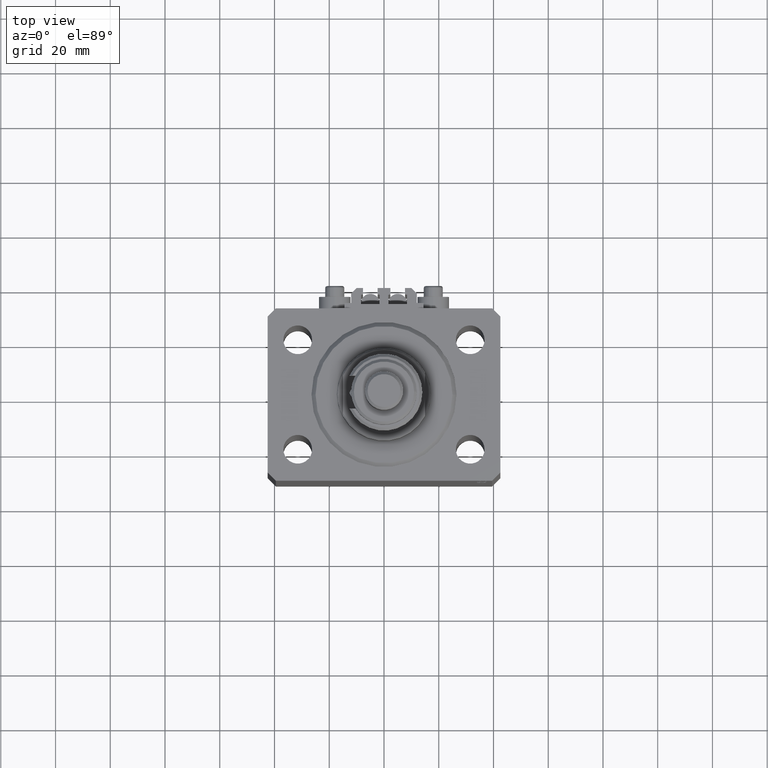
[diagram: clean part render]
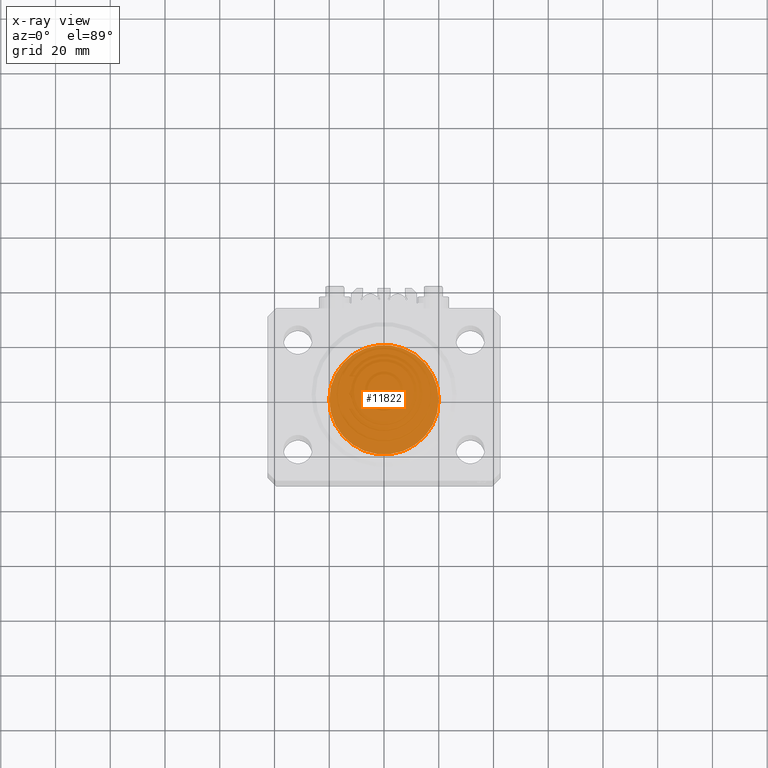
[diagram: x-ray — body ghosted, one internal face saturated and labeled with its STEP entity id]
A machine part, top view, then the same camera in x-ray: the body is ghosted and one INTERNAL B-rep face — a face not visible from any outside direction — is saturated and labeled: STEP entity #11822.
In plain terms, the highlighted planar face has unit normal (0, 0, 1).
Its self-contained STEP definition (entity closure, byte-faithful):
#2879 = ORIENTED_EDGE ( 'NONE', *, *, #25525, .F. ) ;
#3038 = AXIS2_PLACEMENT_3D ( 'NONE', #18969, #15360, #30836 ) ;
#8538 = CARTESIAN_POINT ( 'NONE',  ( 0.000000000000000000, 0.000000000000000000, 0.000000000000000000 ) ) ;
#9011 = VERTEX_POINT ( 'NONE', #24372 ) ;
#11822 = ADVANCED_FACE ( 'NONE', ( #36820 ), #29346, .F. ) ;
#15360 = DIRECTION ( 'NONE',  ( 0.000000000000000000, 0.000000000000000000, 1.000000000000000000 ) ) ;
#18969 = CARTESIAN_POINT ( 'NONE',  ( 0.000000000000000000, 0.000000000000000000, 0.000000000000000000 ) ) ;
#23237 = DIRECTION ( 'NONE',  ( 1.000000000000000000, 0.000000000000000000, 0.000000000000000000 ) ) ;
#23563 = VERTEX_POINT ( 'NONE', #48374 ) ;
#24372 = CARTESIAN_POINT ( 'NONE',  ( -20.00000000000000000, 0.000000000000000000, 0.000000000000000000 ) ) ;
#25525 = EDGE_CURVE ( 'NONE', #23563, #9011, #42785, .T. ) ;
#27522 = AXIS2_PLACEMENT_3D ( 'NONE', #40935, #40679, #41450 ) ;
#29346 = PLANE ( 'NONE',  #27522 ) ;
#30223 = CIRCLE ( 'NONE', #3038, 20.00000000000000000 ) ;
#30836 = DIRECTION ( 'NONE',  ( 1.000000000000000000, 0.000000000000000000, 0.000000000000000000 ) ) ;
#36820 = FACE_OUTER_BOUND ( 'NONE', #42961, .T. ) ;
#40679 = DIRECTION ( 'NONE',  ( 0.000000000000000000, 0.000000000000000000, 1.000000000000000000 ) ) ;
#40935 = CARTESIAN_POINT ( 'NONE',  ( 0.000000000000000000, 0.000000000000000000, 0.000000000000000000 ) ) ;
#41450 = DIRECTION ( 'NONE',  ( 1.000000000000000000, 0.000000000000000000, -0.000000000000000000 ) ) ;
#42129 = ORIENTED_EDGE ( 'NONE', *, *, #46270, .F. ) ;
#42785 = CIRCLE ( 'NONE', #49359, 20.00000000000000000 ) ;
#42852 = DIRECTION ( 'NONE',  ( 0.000000000000000000, 0.000000000000000000, 1.000000000000000000 ) ) ;
#42961 = EDGE_LOOP ( 'NONE', ( #42129, #2879 ) ) ;
#46270 = EDGE_CURVE ( 'NONE', #9011, #23563, #30223, .T. ) ;
#48374 = CARTESIAN_POINT ( 'NONE',  ( 20.00000000000000000, 2.449293598294706513E-15, 0.000000000000000000 ) ) ;
#49359 = AXIS2_PLACEMENT_3D ( 'NONE', #8538, #42852, #23237 ) ;